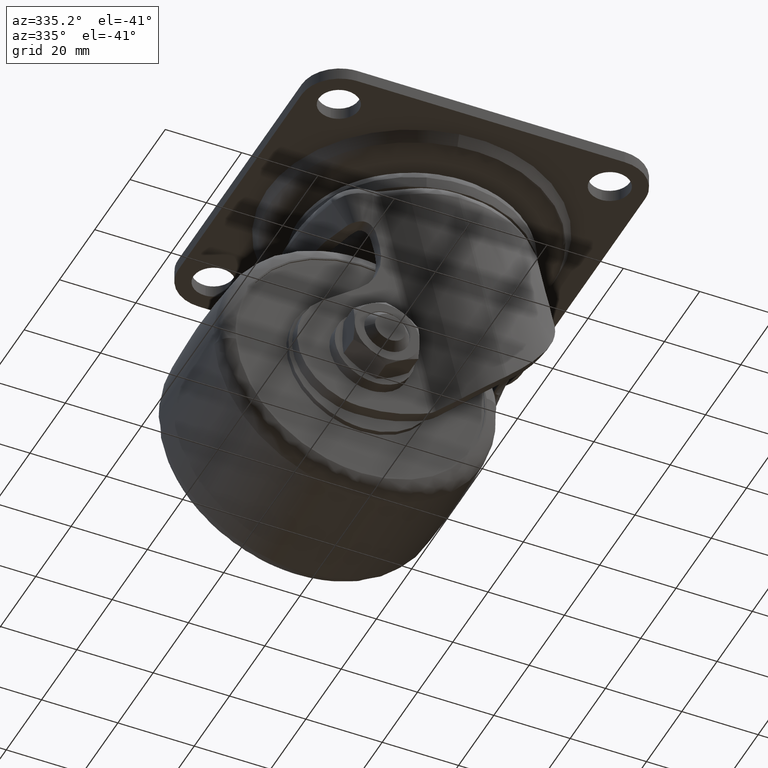
[diagram: clean part render]
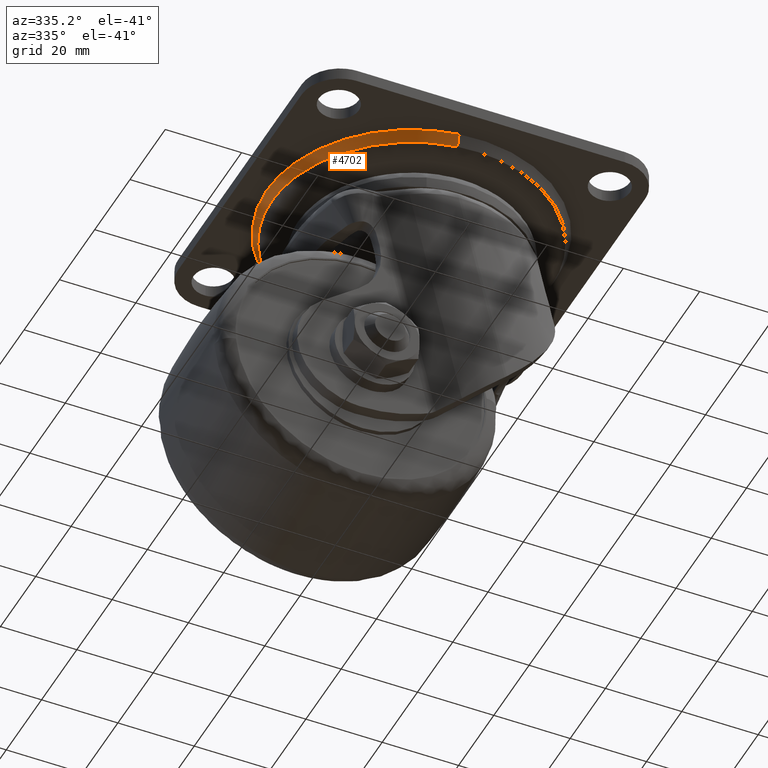
[diagram: same view with one face highlighted and labeled with its STEP entity id]
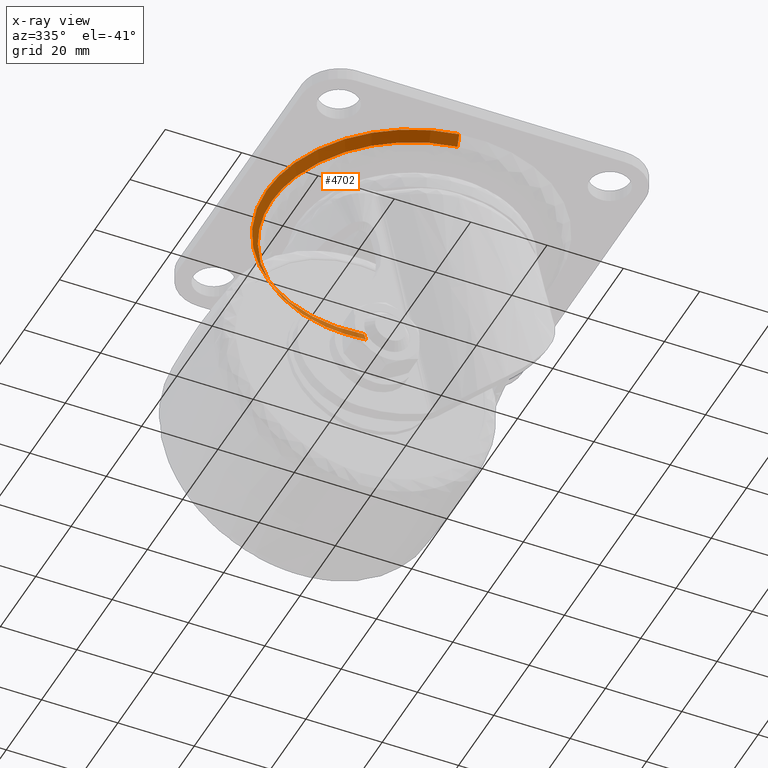
[diagram: x-ray of the same camera — body ghosted, the highlighted face saturated]
A machine part, auxiliary view. The second image highlights one B-rep face of the part: STEP entity #4702.
The next image is the same camera in x-ray: the body ghosted, the highlighted face saturated — about 11% of this face is hidden behind the body in this view.
In plain terms, the highlighted face is a freeform B-spline surface patch.
Its self-contained STEP definition (entity closure, byte-faithful):
#4063=CARTESIAN_POINT('',(-38.0,0.0,-3.200000000000105));
#4064=VERTEX_POINT('',#4063);
#4065=CARTESIAN_POINT('',(4.959995304372351,37.674904732204382,-3.199999999998216));
#4066=VERTEX_POINT('',#4065);
#4067=CARTESIAN_POINT('',(-38.0,0.0,-3.200000000000105));
#4068=CARTESIAN_POINT('',(-37.999999999999950,38.000000000000398,-3.199999999999277));
#4069=CARTESIAN_POINT('',(1.083608E-013,38.000000000000867,-3.199999999998332));
#4070=CARTESIAN_POINT('',(2.490651586984369,38.000000000000902,-3.199999999998271));
#4071=CARTESIAN_POINT('',(4.959995304372351,37.674904732204382,-3.199999999998215));
#4079=(BOUNDED_CURVE()B_SPLINE_CURVE(2,(#4067,#4068,#4069,#4070,#4071),.UNSPECIFIED.,.F.,.U.)B_SPLINE_CURVE_WITH_KNOTS((3,2,3),(0.0,0.250000000000000,0.272560615555887),.UNSPECIFIED.)CURVE()GEOMETRIC_REPRESENTATION_ITEM()RATIONAL_B_SPLINE_CURVE((1.0,0.707106781186548,1.0,0.973568594765693,0.951907659708131))REPRESENTATION_ITEM(''));
#4080=EDGE_CURVE('',#4064,#4066,#4079,.T.);
#4082=CARTESIAN_POINT('',(-4.959995304372356,-37.674904732204368,-3.199999999998215));
#4083=VERTEX_POINT('',#4082);
#4084=CARTESIAN_POINT('',(-4.959995304372356,-37.674904732204368,-3.199999999998215));
#4085=CARTESIAN_POINT('',(-38.000000000000078,-33.325105593716074,-3.199999999999160));
#4086=CARTESIAN_POINT('',(-38.0,0.0,-3.200000000000105));
#4094=(BOUNDED_CURVE()B_SPLINE_CURVE(2,(#4084,#4085,#4086),.UNSPECIFIED.,.F.,.U.)B_SPLINE_CURVE_WITH_KNOTS((3,3),(0.772560615555887,1.0),.UNSPECIFIED.)CURVE()GEOMETRIC_REPRESENTATION_ITEM()RATIONAL_B_SPLINE_CURVE((0.951907659708131,0.733538186420854,1.0))REPRESENTATION_ITEM(''));
#4095=EDGE_CURVE('',#4083,#4064,#4094,.T.);
#4571=CARTESIAN_POINT('',(-4.777986027655198,-36.292407019966447,-5.988854371025575));
#4572=VERTEX_POINT('',#4571);
#4603=CARTESIAN_POINT('',(4.777986027655203,36.292407019966433,-5.988854371025573));
#4604=VERTEX_POINT('',#4603);
#4618=CARTESIAN_POINT('',(4.777986027655203,36.292407019966433,-5.988854371025573));
#4619=CARTESIAN_POINT('',(4.959995304372351,37.674904732204382,-3.199999999998216));
#4620=QUASI_UNIFORM_CURVE('',1,(#4618,#4619),.UNSPECIFIED.,.F.,.U.);
#4621=EDGE_CURVE('',#4604,#4066,#4620,.T.);
#4625=CARTESIAN_POINT('',(-4.777986027655198,-36.292407019966447,-5.988854371025575));
#4626=CARTESIAN_POINT('',(-4.959995304372356,-37.674904732204368,-3.199999999998215));
#4627=QUASI_UNIFORM_CURVE('',1,(#4625,#4626),.UNSPECIFIED.,.F.,.U.);
#4628=EDGE_CURVE('',#4572,#4083,#4627,.T.);
#4633=CARTESIAN_POINT('',(4.773435795711135,36.257844577102368,-6.058575730390285));
#4634=CARTESIAN_POINT('',(-31.484408781391238,41.031280372813512,-6.058575730390285));
#4635=CARTESIAN_POINT('',(-36.257844577102368,4.773435795711135,-6.058575730390285));
#4636=CARTESIAN_POINT('',(-41.031280372813512,-31.484408781391238,-6.058575730390285));
#4637=CARTESIAN_POINT('',(-4.773435795711135,-36.257844577102368,-6.058575730390285));
#4638=CARTESIAN_POINT('',(4.964659292078220,37.710331236082340,-3.128535606740350));
#4639=CARTESIAN_POINT('',(-32.745671944004116,42.674990528160556,-3.128535606740351));
#4640=CARTESIAN_POINT('',(-37.710331236082340,4.964659292078220,-3.128535606740350));
#4641=CARTESIAN_POINT('',(-42.674990528160556,-32.745671944004116,-3.128535606740351));
#4642=CARTESIAN_POINT('',(-4.964659292078220,-37.710331236082340,-3.128535606740350));
#4650=(BOUNDED_SURFACE()B_SPLINE_SURFACE(2,1,((#4633,#4638),(#4634,#4639),(#4635,#4640),(#4636,#4641),(#4637,#4642)),.UNSPECIFIED.,.F.,.F.,.U.)B_SPLINE_SURFACE_WITH_KNOTS((3,2,3),(2,2),(0.0,63.019664524450910,126.039329048901810),(0.0,3.275884467785179),.UNSPECIFIED.)GEOMETRIC_REPRESENTATION_ITEM()RATIONAL_B_SPLINE_SURFACE(((1.0,1.0),(0.707106781186548,0.707106781186548),(1.0,1.0),(0.707106781186548,0.707106781186548),(1.0,1.0)))REPRESENTATION_ITEM('')SURFACE());
#4651=CARTESIAN_POINT('',(-36.605572769528322,0.0,-5.988854370942705));
#4652=VERTEX_POINT('',#4651);
#4653=CARTESIAN_POINT('',(-4.777986027655198,-36.292407019966447,-5.988854371025575));
#4654=CARTESIAN_POINT('',(-36.605572769535122,-32.102225733258798,-5.988854370954472));
#4655=CARTESIAN_POINT('',(-36.605572769528322,0.0,-5.988854370942705));
#4663=(BOUNDED_CURVE()B_SPLINE_CURVE(2,(#4653,#4654,#4655),.UNSPECIFIED.,.F.,.U.)B_SPLINE_CURVE_WITH_KNOTS((3,3),(0.772560615555722,1.0),.UNSPECIFIED.)CURVE()GEOMETRIC_REPRESENTATION_ITEM()RATIONAL_B_SPLINE_CURVE((0.951907659708449,0.733538186420660,1.0))REPRESENTATION_ITEM(''));
#4664=EDGE_CURVE('',#4572,#4652,#4663,.T.);
#4665=ORIENTED_EDGE('',*,*,#4664,.F.);
#4666=ORIENTED_EDGE('',*,*,#4628,.T.);
#4667=ORIENTED_EDGE('',*,*,#4095,.T.);
#4668=ORIENTED_EDGE('',*,*,#4080,.T.);
#4669=ORIENTED_EDGE('',*,*,#4621,.F.);
#4670=CARTESIAN_POINT('',(-33.121712512793792,15.585894841133010,-5.988854371112476));
#4671=VERTEX_POINT('',#4670);
#4672=CARTESIAN_POINT('',(-33.121712512793792,15.585894841133005,-5.988854371112476));
#4673=CARTESIAN_POINT('',(-23.230602877108623,36.605572769489882,-5.988854371096203));
#4674=CARTESIAN_POINT('',(4.565587E-011,36.605572769496078,-5.988854371037728));
#4675=CARTESIAN_POINT('',(2.399255997680093,36.605572769496717,-5.988854371031689));
#4676=CARTESIAN_POINT('',(4.777986027655203,36.292407019966433,-5.988854371025573));
#4684=(BOUNDED_CURVE()B_SPLINE_CURVE(2,(#4672,#4673,#4674,#4675,#4676),.UNSPECIFIED.,.F.,.U.)B_SPLINE_CURVE_WITH_KNOTS((3,2,3),(0.072331535363646,0.250000000000000,0.272560615555722),.UNSPECIFIED.)CURVE()GEOMETRIC_REPRESENTATION_ITEM()RATIONAL_B_SPLINE_CURVE((0.879552628112303,0.791848446044056,1.0,0.973568594765887,0.951907659708449))REPRESENTATION_ITEM(''));
#4685=EDGE_CURVE('',#4671,#4604,#4684,.T.);
#4686=ORIENTED_EDGE('',*,*,#4685,.F.);
#4687=CARTESIAN_POINT('',(-36.605572769528322,0.0,-5.988854370942705));
#4688=CARTESIAN_POINT('',(-36.605572769489910,8.182314935605140,-5.988854371027591));
#4689=CARTESIAN_POINT('',(-33.121712512793792,15.585894841133005,-5.988854371112476));
#4697=(BOUNDED_CURVE()B_SPLINE_CURVE(2,(#4687,#4688,#4689),.UNSPECIFIED.,.F.,.U.)B_SPLINE_CURVE_WITH_KNOTS((3,3),(0.0,0.072331535363646),.UNSPECIFIED.)CURVE()GEOMETRIC_REPRESENTATION_ITEM()RATIONAL_B_SPLINE_CURVE((1.0,0.915258335142491,0.879552628112303))REPRESENTATION_ITEM(''));
#4698=EDGE_CURVE('',#4652,#4671,#4697,.T.);
#4699=ORIENTED_EDGE('',*,*,#4698,.F.);
#4700=EDGE_LOOP('',(#4665,#4666,#4667,#4668,#4669,#4686,#4699));
#4701=FACE_OUTER_BOUND('',#4700,.T.);
#4702=ADVANCED_FACE('',(#4701),#4650,.T.);